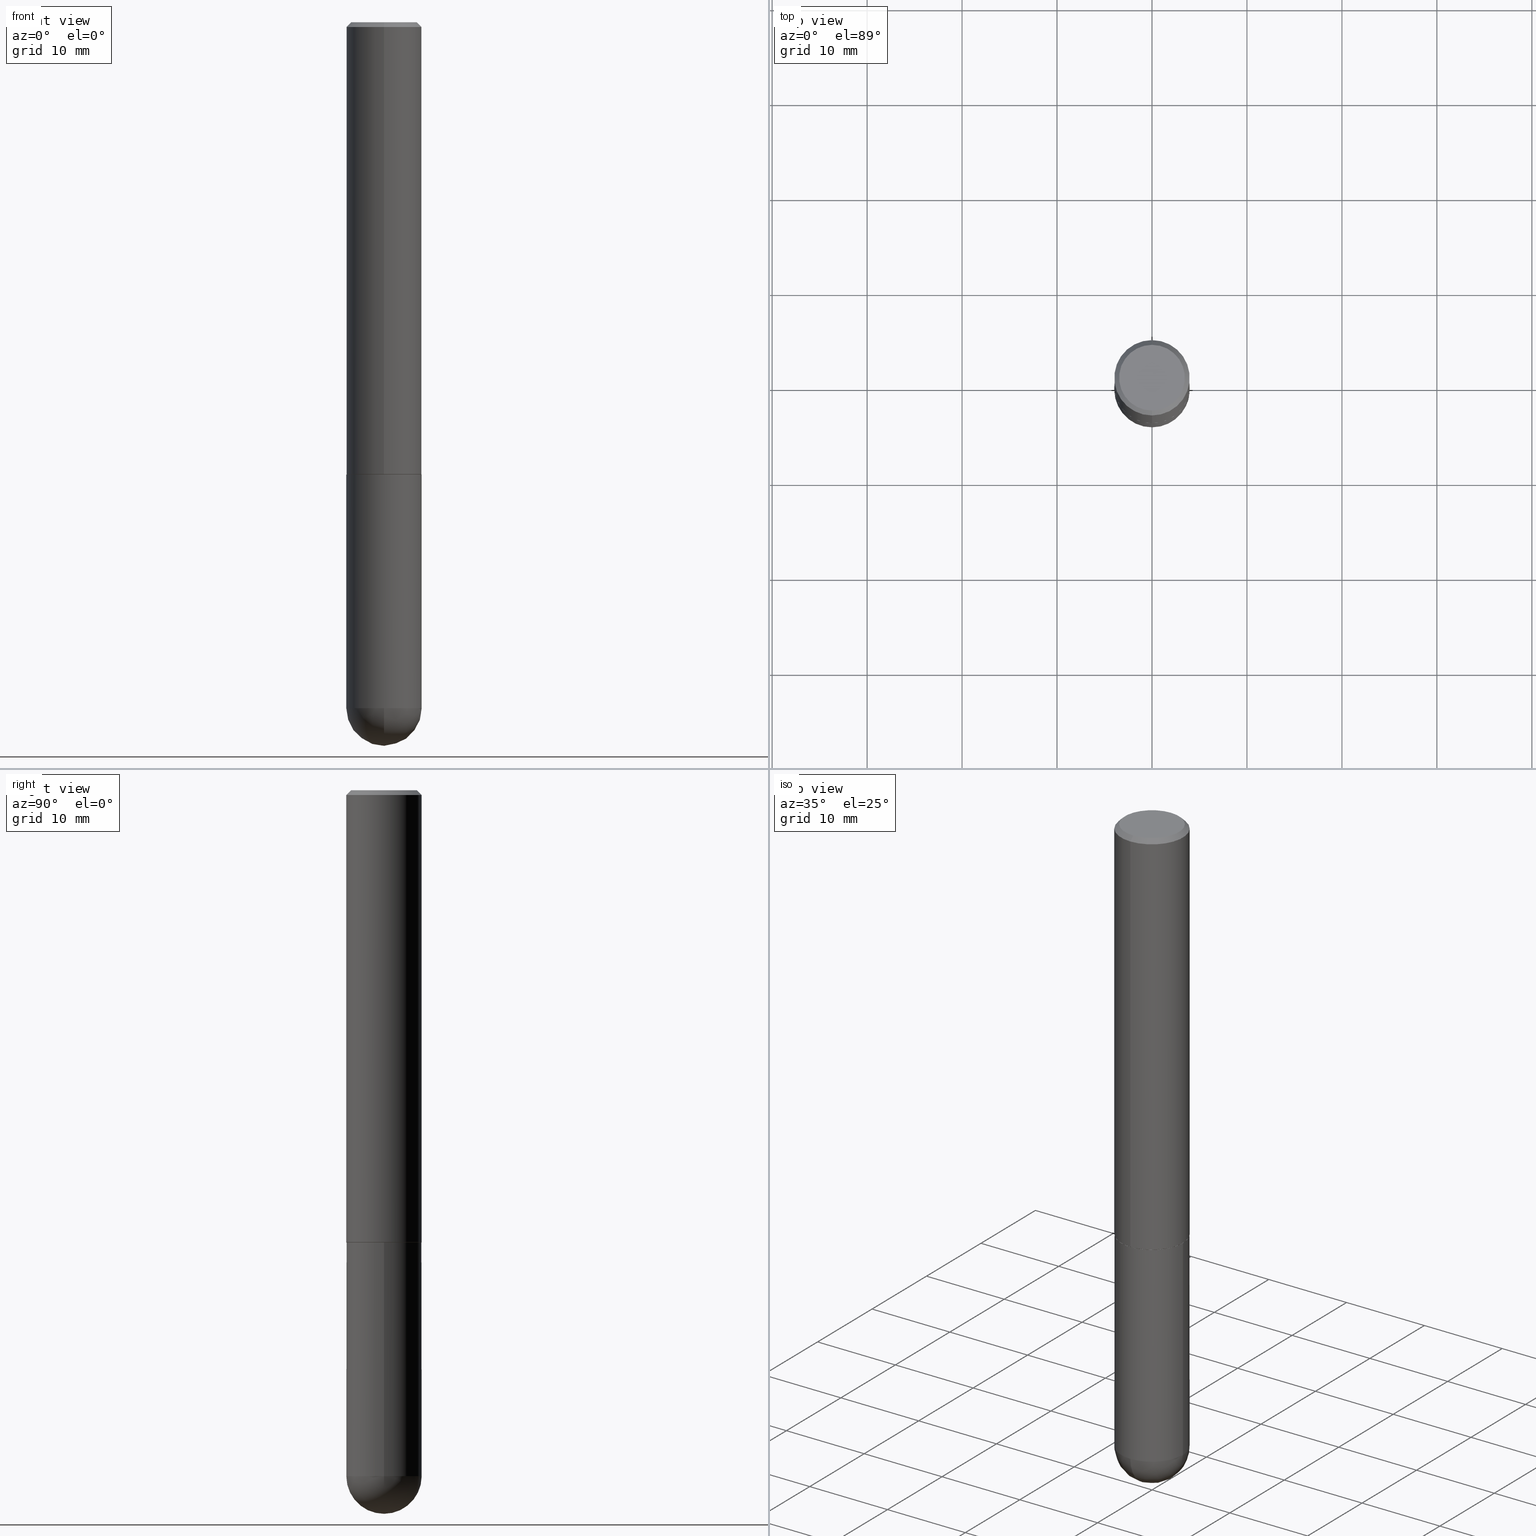
[diagram: canonical four-view strip — front | top / right | iso, engineering-drawing reading convention]
A machine part, canonical four-view strip (front | top / right | iso — engineering-drawing reading convention). The complete STEP part file that produces these views, byte-faithful:
ISO-10303-21;
HEADER;
FILE_DESCRIPTION (( 'STEP AP203' ),
    '1' );
FILE_NAME ('33106.STEP',
    '2024-02-21T17:48:07',
    ( '' ),
    ( '' ),
    'SwSTEP 2.0',
    'SolidWorks 2023',
    '' );
FILE_SCHEMA (( 'CONFIG_CONTROL_DESIGN' ));
ENDSEC;

DATA;
#1 = DIRECTION ( 'NONE',  ( -6.982962677686265133E-15, -1.000000000000000000, 3.491608104167224685E-15 ) ) ;
#2 = ORIENTED_EDGE ( 'NONE', *, *, #310, .F. ) ;
#3 = DIRECTION ( 'NONE',  ( -6.982962677686265133E-15, -1.000000000000000000, 3.496765431890258103E-15 ) ) ;
#4 = ORIENTED_EDGE ( 'NONE', *, *, #401, .F. ) ;
#5 = VERTEX_POINT ( 'NONE', #159 ) ;
#6 = FACE_OUTER_BOUND ( 'NONE', #108, .T. ) ;
#7 = DIRECTION ( 'NONE',  ( -2.445468806185136597E-29, 3.491481338843145583E-15, 1.000000000000000000 ) ) ;
#8 = EDGE_CURVE ( 'NONE', #254, #392, #345, .T. ) ;
#9 = CARTESIAN_POINT ( 'NONE',  ( -0.1562500000000000000, -7.127490759207891394E-15, -2.843750000000000000 ) ) ;
#10 = VERTEX_POINT ( 'NONE', #266 ) ;
#11 = PRODUCT_DEFINITION_FORMATION_WITH_SPECIFIED_SOURCE ( 'ANY', '', #170, .NOT_KNOWN. ) ;
#12 = AXIS2_PLACEMENT_3D ( 'NONE', #213, #285, #409 ) ;
#13 = ORIENTED_EDGE ( 'NONE', *, *, #302, .F. ) ;
#14 = APPLICATION_PROTOCOL_DEFINITION ( 'international standard', 'config_control_design', 1994, #48 ) ;
#15 = EDGE_CURVE ( 'NONE', #228, #74, #99, .T. ) ;
#16 = DIRECTION ( 'NONE',  ( -2.445380286432449473E-29, 3.491608104167224685E-15, 1.000000000000000000 ) ) ;
#17 = CIRCLE ( 'NONE', #202, 0.1562500000000000000 ) ;
#18 = FACE_OUTER_BOUND ( 'NONE', #134, .T. ) ;
#19 = ADVANCED_FACE ( 'NONE', ( #71 ), #323, .F. ) ;
#20 = FACE_OUTER_BOUND ( 'NONE', #36, .T. ) ;
#21 = AXIS2_PLACEMENT_3D ( 'NONE', #408, #111, #244 ) ;
#22 = CARTESIAN_POINT ( 'NONE',  ( -0.1562500000000000000, 1.110223024625156540E-15, -7.685836078523291160E-30 ) ) ;
#23 = CARTESIAN_POINT ( 'NONE',  ( 0.1562500000000000000, -9.328801702221526319E-15, -2.843750000000000000 ) ) ;
#24 = APPROVAL_DATE_TIME ( #366, #88 ) ;
#25 = FACE_OUTER_BOUND ( 'NONE', #161, .T. ) ;
#26 = CIRCLE ( 'NONE', #106, 0.1562500000000002498 ) ;
#27 = DIRECTION ( 'NONE',  ( 2.445380286432449473E-29, -3.491608104167224685E-15, -1.000000000000000000 ) ) ;
#28 = CARTESIAN_POINT ( 'NONE',  ( 4.890760572864907283E-31, -6.983216208334460956E-17, -0.02000000000000003511 ) ) ;
#29 = DIRECTION ( 'NONE',  ( -2.445380286432449473E-29, 3.491608104167224685E-15, 1.000000000000000000 ) ) ;
#30 = ORIENTED_EDGE ( 'NONE', *, *, #232, .F. ) ;
#31 = DATE_TIME_ROLE ( 'classification_date' ) ;
#32 =( NAMED_UNIT ( * ) PLANE_ANGLE_UNIT ( ) SI_UNIT ( $, .RADIAN. ) );
#33 = ORIENTED_EDGE ( 'NONE', *, *, #203, .F. ) ;
#34 = SHAPE_DEFINITION_REPRESENTATION ( #314, #305 ) ;
#35 = DIRECTION ( 'NONE',  ( 1.000000000000000000, 0.000000000000000000, 0.000000000000000000 ) ) ;
#36 = EDGE_LOOP ( 'NONE', ( #100, #187 ) ) ;
#37 = PERSON_AND_ORGANIZATION_ROLE ( 'design_owner' ) ;
#38 = VERTEX_POINT ( 'NONE', #91 ) ;
#39 = EDGE_LOOP ( 'NONE', ( #222, #381, #385, #191, #221 ) ) ;
#40 = AXIS2_PLACEMENT_3D ( 'NONE', #291, #90, #312 ) ;
#41 = ADVANCED_FACE ( 'NONE', ( #372 ), #94, .T. ) ;
#42 = CC_DESIGN_PERSON_AND_ORGANIZATION_ASSIGNMENT ( #210, #348, ( #11 ) ) ;
#43 = CONICAL_SURFACE ( 'NONE', #197, 0.1552499999999999991, 0.7853981633975336552 ) ;
#44 = DESIGN_CONTEXT ( 'detailed design', #48, 'design' ) ;
#45 = AXIS2_PLACEMENT_3D ( 'NONE', #371, #211, #342 ) ;
#46 = CARTESIAN_POINT ( 'NONE',  ( 1.091087918388524927E-15, 0.1562499999999934497, -1.875000000000000666 ) ) ;
#47 = DIRECTION ( 'NONE',  ( -6.982962677686265922E-15, -1.000000000000000000, 3.519288880726909138E-15 ) ) ;
#48 = APPLICATION_CONTEXT ( 'configuration controlled 3d designs of mechanical parts and assemblies' ) ;
#49 = DATE_TIME_ROLE ( 'creation_date' ) ;
#50 = DIRECTION ( 'NONE',  ( -4.937700262164969294E-15, -0.7071067811866054154, 0.7071067811864896191 ) ) ;
#51 = CARTESIAN_POINT ( 'NONE',  ( 0.1562500000000000000, -1.091087918388479174E-15, 7.619026212181150377E-30 ) ) ;
#52 = LOCAL_TIME ( 12, 48, 7.000000000000000000, #59 ) ;
#53 = PLANE ( 'NONE',  #268 ) ;
#54 = CARTESIAN_POINT ( 'NONE',  ( -1.091087918388479568E-15, -0.1562500000000000833, 5.455637662761290912E-16 ) ) ;
#55 = DIRECTION ( 'NONE',  ( 6.982962677686265133E-15, 1.000000000000000000, -3.496765431890258103E-15 ) ) ;
#56 = DIRECTION ( 'NONE',  ( -2.445380286432449473E-29, 3.491608104167224685E-15, 1.000000000000000000 ) ) ;
#57 = DIRECTION ( 'NONE',  ( -2.445380286432449473E-29, 3.491608104167224685E-15, 1.000000000000000000 ) ) ;
#58 = DIRECTION ( 'NONE',  ( 6.982962677686265922E-15, 1.000000000000000000, -3.496765431890248242E-15 ) ) ;
#59 = COORDINATED_UNIVERSAL_TIME_OFFSET ( 5, 0, .BEHIND. ) ;
#60 = CARTESIAN_POINT ( 'NONE',  ( 4.585088037060842691E-29, -6.546765195313547517E-15, -1.875000000000000000 ) ) ;
#61 = FACE_OUTER_BOUND ( 'NONE', #130, .T. ) ;
#62 = AXIS2_PLACEMENT_3D ( 'NONE', #60, #284, #179 ) ;
#63 = DIRECTION ( 'NONE',  ( -2.445468806185136597E-29, 3.491481338843145583E-15, 1.000000000000000000 ) ) ;
#64 = CARTESIAN_POINT ( 'NONE',  ( -3.340625975209204368E-45, 4.769874359725358949E-31, 1.366096714586189504E-16 ) ) ;
#65 = CIRCLE ( 'NONE', #183, 0.1562500000000000000 ) ;
#66 = DIRECTION ( 'NONE',  ( -6.982962677686265922E-15, -1.000000000000000000, 3.491608104167224685E-15 ) ) ;
#67 = ORIENTED_EDGE ( 'NONE', *, *, #141, .F. ) ;
#68 = CC_DESIGN_PERSON_AND_ORGANIZATION_ASSIGNMENT ( #394, #337, ( #205 ) ) ;
#69 = DATE_AND_TIME ( #296, #404 ) ;
#70 = ORIENTED_EDGE ( 'NONE', *, *, #389, .F. ) ;
#71 = FACE_OUTER_BOUND ( 'NONE', #147, .T. ) ;
#72 = PERSON_AND_ORGANIZATION ( #397, #367 ) ;
#73 = ADVANCED_FACE ( 'NONE', ( #122 ), #251, .T. ) ;
#74 = VERTEX_POINT ( 'NONE', #398 ) ;
#75 = MANIFOLD_SOLID_BREP ( 'Body-Move/Copy2[2]', #198 ) ;
#76 = CARTESIAN_POINT ( 'NONE',  ( 1.091087918388478976E-15, 0.1562499999999998612, -0.02000000000000057981 ) ) ;
#77 = EDGE_CURVE ( 'NONE', #74, #257, #171, .T. ) ;
#78 = CC_DESIGN_APPROVAL ( #88, ( #205 ) ) ;
#79 = CARTESIAN_POINT ( 'NONE',  ( 1.110223024625180601E-15, 0.1562499999999936995, -1.874000000000000554 ) ) ;
#80 = CONICAL_SURFACE ( 'NONE', #181, 0.1562499999999999445, 0.7853981633974472798 ) ;
#81 = ORIENTED_EDGE ( 'NONE', *, *, #295, .T. ) ;
#82 = CIRCLE ( 'NONE', #258, 0.1562499999999999445 ) ;
#83 = DIRECTION ( 'NONE',  ( 1.000000000000000000, -6.982962677686265922E-15, 4.883557194083112340E-29 ) ) ;
#84 = ADVANCED_FACE ( 'NONE', ( #18 ), #390, .T. ) ;
#85 = FACE_OUTER_BOUND ( 'NONE', #195, .T. ) ;
#86 = DIRECTION ( 'NONE',  ( 1.000000000000000000, -6.982962677686262766E-15, 0.000000000000000000 ) ) ;
#87 = LOCAL_TIME ( 12, 48, 7.000000000000000000, #127 ) ;
#88 = APPROVAL ( #137, 'UNSPECIFIED' ) ;
#89 = AXIS2_PLACEMENT_3D ( 'NONE', #375, #338, #98 ) ;
#90 = DIRECTION ( 'NONE',  ( -2.445380286432449473E-29, 3.491608104167224685E-15, 1.000000000000000000 ) ) ;
#91 = CARTESIAN_POINT ( 'NONE',  ( 1.091087918388478976E-15, 0.1562499999999998612, -0.02000000000000057981 ) ) ;
#92 = APPROVAL_STATUS ( 'not_yet_approved' ) ;
#93 = DIRECTION ( 'NONE',  ( -2.445468806185136597E-29, 3.491481338843145583E-15, 1.000000000000000000 ) ) ;
#94 = CYLINDRICAL_SURFACE ( 'NONE', #12, 0.1562500000000000000 ) ;
#95 = PLANE ( 'NONE',  #276 ) ;
#96 = CARTESIAN_POINT ( 'NONE',  ( 0.000000000000000000, 0.000000000000000000, 0.000000000000000000 ) ) ;
#97 = ORIENTED_EDGE ( 'NONE', *, *, #389, .T. ) ;
#98 = DIRECTION ( 'NONE',  ( -6.982962677686265922E-15, -1.000000000000000000, 3.519288880726909138E-15 ) ) ;
#99 = CIRCLE ( 'NONE', #246, 0.1552499999999999991 ) ;
#100 = ORIENTED_EDGE ( 'NONE', *, *, #185, .T. ) ;
#101 = ORIENTED_EDGE ( 'NONE', *, *, #401, .T. ) ;
#102 = LINE ( 'NONE', #76, #219 ) ;
#103 = EDGE_CURVE ( 'NONE', #298, #257, #239, .T. ) ;
#104 = DIRECTION ( 'NONE',  ( -6.982962677686265922E-15, -1.000000000000000000, 3.519288880726909138E-15 ) ) ;
#105 = DIRECTION ( 'NONE',  ( -2.445380286432449473E-29, 3.491608104167224685E-15, 1.000000000000000000 ) ) ;
#106 = AXIS2_PLACEMENT_3D ( 'NONE', #116, #57, #315 ) ;
#107 = EDGE_LOOP ( 'NONE', ( #331, #378, #327, #33 ) ) ;
#108 = EDGE_LOOP ( 'NONE', ( #4, #297, #264, #194 ) ) ;
#109 = CARTESIAN_POINT ( 'NONE',  ( 0.000000000000000000, 0.000000000000000000, 0.000000000000000000 ) ) ;
#110 = AXIS2_PLACEMENT_3D ( 'NONE', #405, #253, #148 ) ;
#111 = DIRECTION ( 'NONE',  ( -1.000000000000000000, 6.982962677686265922E-15, -4.883557194083112340E-29 ) ) ;
#112 = FACE_OUTER_BOUND ( 'NONE', #39, .T. ) ;
#113 = VERTEX_POINT ( 'NONE', #188 ) ;
#114 = PERSON_AND_ORGANIZATION ( #397, #367 ) ;
#115 = CONICAL_SURFACE ( 'NONE', #89, 0.1552499999999999991, 0.7853981633975336552 ) ;
#116 = CARTESIAN_POINT ( 'NONE',  ( 4.582642656774410349E-29, -6.543273587209378977E-15, -1.874000000000000110 ) ) ;
#117 = DIRECTION ( 'NONE',  ( 6.982962677686265133E-15, 1.000000000000000000, -3.496765431890258103E-15 ) ) ;
#118 = APPROVAL_ROLE ( '' ) ;
#119 = DIRECTION ( 'NONE',  ( 0.000000000000000000, 0.000000000000000000, 1.000000000000000000 ) ) ;
#120 = CC_DESIGN_DATE_AND_TIME_ASSIGNMENT ( #403, #49, ( #205 ) ) ;
#121 = DIRECTION ( 'NONE',  ( -6.982962677686265133E-15, -1.000000000000000000, 3.491608104167224290E-15 ) ) ;
#122 = FACE_OUTER_BOUND ( 'NONE', #349, .T. ) ;
#123 = SECURITY_CLASSIFICATION_LEVEL ( 'unclassified' ) ;
#124 = ORIENTED_EDGE ( 'NONE', *, *, #8, .F. ) ;
#125 = DIRECTION ( 'NONE',  ( 1.000000000000000000, -6.982962677686262766E-15, 0.000000000000000000 ) ) ;
#126 = DIRECTION ( 'NONE',  ( -2.445380286432449473E-29, 3.491608104167224685E-15, 1.000000000000000000 ) ) ;
#127 = COORDINATED_UNIVERSAL_TIME_OFFSET ( 5, 0, .BEHIND. ) ;
#128 = PRODUCT_RELATED_PRODUCT_CATEGORY ( 'detail', '', ( #170 ) ) ;
#129 = DIRECTION ( 'NONE',  ( 1.000000000000000000, -6.982962677686262766E-15, 0.000000000000000000 ) ) ;
#130 = EDGE_LOOP ( 'NONE', ( #382, #101, #351, #30 ) ) ;
#131 = AXIS2_PLACEMENT_3D ( 'NONE', #329, #341, #236 ) ;
#132 = ORIENTED_EDGE ( 'NONE', *, *, #203, .T. ) ;
#133 = CIRCLE ( 'NONE', #110, 0.1562500000000000000 ) ;
#134 = EDGE_LOOP ( 'NONE', ( #293, #97, #325, #357 ) ) ;
#135 = EDGE_CURVE ( 'NONE', #5, #38, #227, .T. ) ;
#136 = PERSON_AND_ORGANIZATION ( #397, #367 ) ;
#137 = APPROVAL_STATUS ( 'not_yet_approved' ) ;
#138 = APPROVAL_PERSON_ORGANIZATION ( #172, #166, #249 ) ;
#139 = AXIS2_PLACEMENT_3D ( 'NONE', #387, #7, #129 ) ;
#140 = DIRECTION ( 'NONE',  ( -6.982962677686265133E-15, -1.000000000000000000, 3.491608104167224685E-15 ) ) ;
#141 = EDGE_CURVE ( 'NONE', #38, #5, #82, .T. ) ;
#142 = CARTESIAN_POINT ( 'NONE',  ( 0.1562500000000000000, -7.637615428719378669E-15, -1.875000000000000000 ) ) ;
#143 = SECURITY_CLASSIFICATION ( '', '', #123 ) ;
#144 = VECTOR ( 'NONE', #225, 39.37007874015748143 ) ;
#145 = AXIS2_PLACEMENT_3D ( 'NONE', #280, #313, #177 ) ;
#146 = CYLINDRICAL_SURFACE ( 'NONE', #145, 0.1562500000000000000 ) ;
#147 = EDGE_LOOP ( 'NONE', ( #324, #320 ) ) ;
#148 = DIRECTION ( 'NONE',  ( 1.000000000000000000, -6.982962677686269077E-15, 0.000000000000000000 ) ) ;
#149 = FACE_OUTER_BOUND ( 'NONE', #230, .T. ) ;
#150 = CARTESIAN_POINT ( 'NONE',  ( 4.585088037060842691E-29, -6.546765195313547517E-15, -1.875000000000000000 ) ) ;
#151 = COORDINATED_UNIVERSAL_TIME_OFFSET ( 5, 0, .BEHIND. ) ;
#152 = APPROVAL_PERSON_ORGANIZATION ( #248, #241, #118 ) ;
#153 = DIRECTION ( 'NONE',  ( -2.445380286432449473E-29, 3.491608104167224685E-15, 1.000000000000000000 ) ) ;
#154 = DIRECTION ( 'NONE',  ( -2.445468806185136877E-29, 3.491481338843145188E-15, 1.000000000000000000 ) ) ;
#155 = CARTESIAN_POINT ( 'NONE',  ( -1.071952812151800821E-15, -0.1562500000000000000, -0.01999999999999948694 ) ) ;
#156 = CALENDAR_DATE ( 2024, 21, 2 ) ;
#157 = EDGE_CURVE ( 'NONE', #199, #10, #358, .T. ) ;
#158 = DIRECTION ( 'NONE',  ( -2.445380286432449473E-29, 3.491608104167224685E-15, 1.000000000000000000 ) ) ;
#159 = CARTESIAN_POINT ( 'NONE',  ( -1.071952812151800821E-15, -0.1562500000000000000, -0.01999999999999948694 ) ) ;
#160 = ORIENTED_EDGE ( 'NONE', *, *, #77, .T. ) ;
#161 = EDGE_LOOP ( 'NONE', ( #281, #160, #218, #260 ) ) ;
#162 = AXIS2_PLACEMENT_3D ( 'NONE', #96, #29, #288 ) ;
#163 = ORIENTED_EDGE ( 'NONE', *, *, #207, .T. ) ;
#164 = APPROVAL_PERSON_ORGANIZATION ( #136, #88, #235 ) ;
#165 = AXIS2_PLACEMENT_3D ( 'NONE', #374, #16, #140 ) ;
#166 = APPROVAL ( #309, 'UNSPECIFIED' ) ;
#167 = ADVANCED_FACE ( 'NONE', ( #85 ), #95, .F. ) ;
#168 = AXIS2_PLACEMENT_3D ( 'NONE', #220, #63, #125 ) ;
#169 = CONICAL_SURFACE ( 'NONE', #406, 0.1562499999999999445, 0.7853981633974472798 ) ;
#170 = PRODUCT ( '33106', '33106', '', ( #294 ) ) ;
#171 = LINE ( 'NONE', #200, #393 ) ;
#172 = PERSON_AND_ORGANIZATION ( #397, #367 ) ;
#173 = LINE ( 'NONE', #22, #395 ) ;
#174 = FACE_OUTER_BOUND ( 'NONE', #376, .T. ) ;
#175 = APPLICATION_CONTEXT ( 'configuration controlled 3d designs of mechanical parts and assemblies' ) ;
#176 = ADVANCED_FACE ( 'NONE', ( #174 ), #399, .T. ) ;
#177 = DIRECTION ( 'NONE',  ( 1.000000000000000000, -6.982962677686266711E-15, 4.876176775795936353E-29 ) ) ;
#178 = CARTESIAN_POINT ( 'NONE',  ( -1.110223024625089684E-15, -0.1562500000000103806, -2.843749999999999556 ) ) ;
#179 = DIRECTION ( 'NONE',  ( -6.982962677686265922E-15, -1.000000000000000000, 3.519288880726909138E-15 ) ) ;
#180 = DIRECTION ( 'NONE',  ( -2.445468806185136877E-29, 3.491481338843145188E-15, 1.000000000000000000 ) ) ;
#181 = AXIS2_PLACEMENT_3D ( 'NONE', #306, #250, #117 ) ;
#182 = LOCAL_TIME ( 12, 48, 7.000000000000000000, #151 ) ;
#183 = AXIS2_PLACEMENT_3D ( 'NONE', #204, #311, #336 ) ;
#184 =( LENGTH_UNIT ( ) NAMED_UNIT ( * ) SI_UNIT ( $, .METRE. ) );
#185 = EDGE_CURVE ( 'NONE', #346, #299, #133, .T. ) ;
#186 = PERSON_AND_ORGANIZATION ( #397, #367 ) ;
#187 = ORIENTED_EDGE ( 'NONE', *, *, #238, .T. ) ;
#188 = CARTESIAN_POINT ( 'NONE',  ( 1.091087918388548199E-15, 0.1562499999999900357, -2.843750000000000444 ) ) ;
#189 = ORIENTED_EDGE ( 'NONE', *, *, #302, .T. ) ;
#190 = CALENDAR_DATE ( 2024, 21, 2 ) ;
#191 = ORIENTED_EDGE ( 'NONE', *, *, #308, .F. ) ;
#192 = DIRECTION ( 'NONE',  ( -1.000000000000000000, 6.982962677686265922E-15, -4.876176775795935793E-29 ) ) ;
#193 = AXIS2_PLACEMENT_3D ( 'NONE', #215, #119, #35 ) ;
#194 = ORIENTED_EDGE ( 'NONE', *, *, #141, .T. ) ;
#195 = EDGE_LOOP ( 'NONE', ( #402, #262 ) ) ;
#196 = ADVANCED_FACE ( 'NONE', ( #25 ), #115, .T. ) ;
#197 = AXIS2_PLACEMENT_3D ( 'NONE', #391, #259, #104 ) ;
#198 = CLOSED_SHELL ( 'NONE', ( #196, #84, #273, #265, #73, #377, #19, #167 ) ) ;
#199 = VERTEX_POINT ( 'NONE', #208 ) ;
#200 = CARTESIAN_POINT ( 'NONE',  ( 1.103117597267601089E-15, 0.1552499999999934488, -1.875000000000000666 ) ) ;
#201 = CC_DESIGN_DATE_AND_TIME_ASSIGNMENT ( #410, #31, ( #143 ) ) ;
#202 = AXIS2_PLACEMENT_3D ( 'NONE', #212, #93, #86 ) ;
#203 = EDGE_CURVE ( 'NONE', #257, #298, #26, .T. ) ;
#204 = CARTESIAN_POINT ( 'NONE',  ( 6.954301917588981076E-29, -9.928900057335195583E-15, -2.843750000000000000 ) ) ;
#205 = PRODUCT_DEFINITION ( 'UNKNOWN', '', #11, #44 ) ;
#206 = CARTESIAN_POINT ( 'NONE',  ( -1.091087918388434997E-15, -0.1562500000000068001, -1.873999999999999444 ) ) ;
#207 = EDGE_CURVE ( 'NONE', #396, #392, #347, .T. ) ;
#208 = CARTESIAN_POINT ( 'NONE',  ( -1.003347832174085292E-15, -0.1362499999999998157, 6.123412756514026555E-16 ) ) ;
#209 = DIRECTION ( 'NONE',  ( -1.000000000000000000, 6.982962677686265922E-15, -4.883557194083112340E-29 ) ) ;
#210 = PERSON_AND_ORGANIZATION ( #397, #367 ) ;
#211 = DIRECTION ( 'NONE',  ( -1.000000000000000000, 7.105427357601001070E-15, -4.926315508542082329E-29 ) ) ;
#212 = CARTESIAN_POINT ( 'NONE',  ( 6.954301917588981076E-29, -9.928900057335195583E-15, -2.843750000000000000 ) ) ;
#213 = CARTESIAN_POINT ( 'NONE',  ( 0.000000000000000000, 0.000000000000000000, 0.000000000000000000 ) ) ;
#214 = ORIENTED_EDGE ( 'NONE', *, *, #295, .F. ) ;
#215 = CARTESIAN_POINT ( 'NONE',  ( 0.000000000000000000, 0.000000000000000000, 0.000000000000000000 ) ) ;
#216 = DIRECTION ( 'NONE',  ( 2.445380286432449473E-29, -3.491608104167224685E-15, -1.000000000000000000 ) ) ;
#217 = EDGE_CURVE ( 'NONE', #74, #228, #368, .T. ) ;
#218 = ORIENTED_EDGE ( 'NONE', *, *, #103, .F. ) ;
#219 = VECTOR ( 'NONE', #229, 39.37007874015748143 ) ;
#220 = CARTESIAN_POINT ( 'NONE',  ( 6.954301917588981076E-29, -9.928900057335195583E-15, -2.843750000000000000 ) ) ;
#221 = ORIENTED_EDGE ( 'NONE', *, *, #269, .T. ) ;
#222 = ORIENTED_EDGE ( 'NONE', *, *, #412, .T. ) ;
#223 = PERSON_AND_ORGANIZATION_ROLE ( 'creator' ) ;
#224 = ORIENTED_EDGE ( 'NONE', *, *, #308, .T. ) ;
#225 = DIRECTION ( 'NONE',  ( -2.445380286432449473E-29, 3.491608104167224685E-15, 1.000000000000000000 ) ) ;
#226 = CC_DESIGN_SECURITY_CLASSIFICATION ( #143, ( #11 ) ) ;
#227 = CIRCLE ( 'NONE', #386, 0.1562499999999999445 ) ;
#228 = VERTEX_POINT ( 'NONE', #231 ) ;
#229 = DIRECTION ( 'NONE',  ( 4.937700262164542520E-15, 0.7071067811865443531, -0.7071067811865506814 ) ) ;
#230 = EDGE_LOOP ( 'NONE', ( #352, #81, #379, #13 ) ) ;
#231 = CARTESIAN_POINT ( 'NONE',  ( -1.084104955710747011E-15, -0.1552500000000065494, -1.874999999999999556 ) ) ;
#232 = EDGE_CURVE ( 'NONE', #10, #38, #102, .T. ) ;
#233 = CIRCLE ( 'NONE', #168, 0.1562500000000000000 ) ;
#234 = ORIENTED_EDGE ( 'NONE', *, *, #8, .T. ) ;
#235 = APPROVAL_ROLE ( '' ) ;
#236 = DIRECTION ( 'NONE',  ( 1.000000000000000000, -6.982962677686269077E-15, 0.000000000000000000 ) ) ;
#237 = AXIS2_PLACEMENT_3D ( 'NONE', #109, #153, #121 ) ;
#238 = EDGE_CURVE ( 'NONE', #299, #346, #333, .T. ) ;
#239 = CIRCLE ( 'NONE', #40, 0.1562500000000002498 ) ;
#240 = CALENDAR_DATE ( 2024, 21, 2 ) ;
#241 = APPROVAL ( #92, 'UNSPECIFIED' ) ;
#242 = ADVANCED_FACE ( 'NONE', ( #20 ), #53, .F. ) ;
#243 = CALENDAR_DATE ( 2024, 21, 2 ) ;
#244 = DIRECTION ( 'NONE',  ( 6.982962677686265922E-15, 1.000000000000000000, -3.496765431890248242E-15 ) ) ;
#245 = SPHERICAL_SURFACE ( 'NONE', #278, 0.1562500000000003886 ) ;
#246 = AXIS2_PLACEMENT_3D ( 'NONE', #384, #105, #47 ) ;
#247 = CC_DESIGN_PERSON_AND_ORGANIZATION_ASSIGNMENT ( #72, #37, ( #170 ) ) ;
#248 = PERSON_AND_ORGANIZATION ( #397, #367 ) ;
#249 = APPROVAL_ROLE ( '' ) ;
#250 = DIRECTION ( 'NONE',  ( 2.445380286432449473E-29, -3.491608104167224685E-15, -1.000000000000000000 ) ) ;
#251 = CYLINDRICAL_SURFACE ( 'NONE', #162, 0.1562500000000000833 ) ;
#252 = LINE ( 'NONE', #155, #277 ) ;
#253 = DIRECTION ( 'NONE',  ( -2.445468806185136597E-29, 3.491481338843145583E-15, 1.000000000000000000 ) ) ;
#254 = VERTEX_POINT ( 'NONE', #9 ) ;
#255 =( GEOMETRIC_REPRESENTATION_CONTEXT ( 3 ) GLOBAL_UNCERTAINTY_ASSIGNED_CONTEXT ( ( #270 ) ) GLOBAL_UNIT_ASSIGNED_CONTEXT ( ( #383, #32, #353 ) ) REPRESENTATION_CONTEXT ( 'NONE', 'WORKASPACE' ) );
#256 = APPROVAL_DATE_TIME ( #69, #166 ) ;
#257 = VERTEX_POINT ( 'NONE', #79 ) ;
#258 = AXIS2_PLACEMENT_3D ( 'NONE', #287, #158, #373 ) ;
#259 = DIRECTION ( 'NONE',  ( -2.445380286432449473E-29, 3.491608104167224685E-15, 1.000000000000000000 ) ) ;
#260 = ORIENTED_EDGE ( 'NONE', *, *, #335, .F. ) ;
#261 = DIRECTION ( 'NONE',  ( 2.438088387897960049E-29, -3.491481338843145188E-15, -1.000000000000000000 ) ) ;
#262 = ORIENTED_EDGE ( 'NONE', *, *, #157, .T. ) ;
#263 = DIRECTION ( 'NONE',  ( -4.851104656540958753E-15, -0.7071067811865492381, -0.7071067811865457964 ) ) ;
#264 = ORIENTED_EDGE ( 'NONE', *, *, #232, .T. ) ;
#265 = ADVANCED_FACE ( 'NONE', ( #6 ), #80, .T. ) ;
#266 = CARTESIAN_POINT ( 'NONE',  ( 1.021258291611615678E-15, 0.1362499999999998157, -3.391219327341647547E-16 ) ) ;
#267 = ORIENTED_EDGE ( 'NONE', *, *, #412, .F. ) ;
#268 = AXIS2_PLACEMENT_3D ( 'NONE', #46, #261, #192 ) ;
#269 = EDGE_CURVE ( 'NONE', #328, #113, #17, .T. ) ;
#270 = UNCERTAINTY_MEASURE_WITH_UNIT (LENGTH_MEASURE( 1.000000000000000082E-05 ), #383, 'distance_accuracy_value', 'NONE');
#271 = CC_DESIGN_PERSON_AND_ORGANIZATION_ASSIGNMENT ( #114, #223, ( #11 ) ) ;
#272 = CC_DESIGN_APPROVAL ( #166, ( #11 ) ) ;
#273 = ADVANCED_FACE ( 'NONE', ( #61 ), #169, .T. ) ;
#274 = FACE_OUTER_BOUND ( 'NONE', #107, .T. ) ;
#275 = COORDINATED_UNIVERSAL_TIME_OFFSET ( 5, 0, .BEHIND. ) ;
#276 = AXIS2_PLACEMENT_3D ( 'NONE', #282, #216, #364 ) ;
#277 = VECTOR ( 'NONE', #263, 39.37007874015748143 ) ;
#278 = AXIS2_PLACEMENT_3D ( 'NONE', #369, #209, #58 ) ;
#279 = EDGE_CURVE ( 'NONE', #10, #199, #283, .T. ) ;
#280 = CARTESIAN_POINT ( 'NONE',  ( 0.000000000000000000, 0.000000000000000000, 0.000000000000000000 ) ) ;
#281 = ORIENTED_EDGE ( 'NONE', *, *, #15, .T. ) ;
#282 = CARTESIAN_POINT ( 'NONE',  ( 9.514286648347523799E-16, 0.1362499999999998157, -4.074267684634742669E-16 ) ) ;
#283 = CIRCLE ( 'NONE', #165, 0.1362499999999998157 ) ;
#284 = DIRECTION ( 'NONE',  ( -2.445380286432449473E-29, 3.491608104167224685E-15, 1.000000000000000000 ) ) ;
#285 = DIRECTION ( 'NONE',  ( -2.445468806185136597E-29, 3.491481338843145583E-15, 1.000000000000000000 ) ) ;
#286 = COORDINATED_UNIVERSAL_TIME_OFFSET ( 5, 0, .BEHIND. ) ;
#287 = CARTESIAN_POINT ( 'NONE',  ( 4.890760572864907283E-31, -6.983216208334460956E-17, -0.02000000000000003511 ) ) ;
#288 = DIRECTION ( 'NONE',  ( -6.982962677686265133E-15, -1.000000000000000000, 3.491608104167224290E-15 ) ) ;
#289 = DATE_AND_TIME ( #156, #52 ) ;
#290 = LINE ( 'NONE', #321, #144 ) ;
#291 = CARTESIAN_POINT ( 'NONE',  ( 4.582642656774410349E-29, -6.543273587209378977E-15, -1.874000000000000110 ) ) ;
#292 = CC_DESIGN_APPROVAL ( #241, ( #143 ) ) ;
#293 = ORIENTED_EDGE ( 'NONE', *, *, #103, .T. ) ;
#294 = MECHANICAL_CONTEXT ( 'NONE', #175, 'mechanical' ) ;
#295 = EDGE_CURVE ( 'NONE', #396, #113, #318, .T. ) ;
#296 = CALENDAR_DATE ( 2024, 21, 2 ) ;
#297 = ORIENTED_EDGE ( 'NONE', *, *, #279, .F. ) ;
#298 = VERTEX_POINT ( 'NONE', #206 ) ;
#299 = VERTEX_POINT ( 'NONE', #316 ) ;
#300 = CLOSED_SHELL ( 'NONE', ( #326, #176, #332, #242, #41 ) ) ;
#301 = EDGE_LOOP ( 'NONE', ( #2, #234, #189, #224, #356 ) ) ;
#302 = EDGE_CURVE ( 'NONE', #392, #328, #65, .T. ) ;
#303 = VECTOR ( 'NONE', #180, 39.37007874015748143 ) ;
#304 = CC_DESIGN_PERSON_AND_ORGANIZATION_ASSIGNMENT ( #186, #319, ( #143 ) ) ;
#305 = ADVANCED_BREP_SHAPE_REPRESENTATION ( '33106', ( #334, #75, #193 ), #255 ) ;
#306 = CARTESIAN_POINT ( 'NONE',  ( 4.890760572864907283E-31, -6.983216208334460956E-17, -0.02000000000000003511 ) ) ;
#307 = DIRECTION ( 'NONE',  ( 5.024295867788490741E-15, 0.7071067811866103003, 0.7071067811864847341 ) ) ;
#308 = EDGE_CURVE ( 'NONE', #328, #346, #343, .T. ) ;
#309 = APPROVAL_STATUS ( 'not_yet_approved' ) ;
#310 = EDGE_CURVE ( 'NONE', #254, #299, #173, .T. ) ;
#311 = DIRECTION ( 'NONE',  ( -2.445468806185136597E-29, 3.491481338843145583E-15, 1.000000000000000000 ) ) ;
#312 = DIRECTION ( 'NONE',  ( -6.982962677686265922E-15, -1.000000000000000000, 3.496765431890251398E-15 ) ) ;
#313 = DIRECTION ( 'NONE',  ( -2.445468806185136597E-29, 3.491481338843145583E-15, 1.000000000000000000 ) ) ;
#314 = PRODUCT_DEFINITION_SHAPE ( 'NONE', 'NONE',  #205 ) ;
#315 = DIRECTION ( 'NONE',  ( -6.982962677686265922E-15, -1.000000000000000000, 3.496765431890251398E-15 ) ) ;
#316 = CARTESIAN_POINT ( 'NONE',  ( -0.1562500000000000000, -7.127490759207891394E-15, -1.875000000000000000 ) ) ;
#317 = LOCAL_TIME ( 12, 48, 7.000000000000000000, #275 ) ;
#318 = CIRCLE ( 'NONE', #360, 0.1562500000000003886 ) ;
#319 = PERSON_AND_ORGANIZATION_ROLE ( 'classification_officer' ) ;
#320 = ORIENTED_EDGE ( 'NONE', *, *, #217, .F. ) ;
#321 = CARTESIAN_POINT ( 'NONE',  ( 1.110223024625156738E-15, 0.1562500000000000833, -5.455637662761290912E-16 ) ) ;
#322 = DIRECTION ( 'NONE',  ( -2.445380286432449473E-29, 3.491608104167224685E-15, 1.000000000000000000 ) ) ;
#323 = PLANE ( 'NONE',  #355 ) ;
#324 = ORIENTED_EDGE ( 'NONE', *, *, #15, .F. ) ;
#325 = ORIENTED_EDGE ( 'NONE', *, *, #135, .F. ) ;
#326 = ADVANCED_FACE ( 'NONE', ( #112 ), #146, .T. ) ;
#327 = ORIENTED_EDGE ( 'NONE', *, *, #335, .T. ) ;
#328 = VERTEX_POINT ( 'NONE', #23 ) ;
#329 = CARTESIAN_POINT ( 'NONE',  ( 4.585254011597131119E-29, -6.546527510330898707E-15, -1.875000000000000000 ) ) ;
#330 = AXIS2_PLACEMENT_3D ( 'NONE', #64, #126, #1 ) ;
#331 = ORIENTED_EDGE ( 'NONE', *, *, #77, .F. ) ;
#332 = ADVANCED_FACE ( 'NONE', ( #149 ), #245, .T. ) ;
#333 = CIRCLE ( 'NONE', #131, 0.1562500000000000000 ) ;
#334 = MANIFOLD_SOLID_BREP ( 'Body-Move/Copy2[1]', #300 ) ;
#335 = EDGE_CURVE ( 'NONE', #228, #298, #400, .T. ) ;
#336 = DIRECTION ( 'NONE',  ( 1.000000000000000000, -6.982962677686262766E-15, 0.000000000000000000 ) ) ;
#337 = PERSON_AND_ORGANIZATION_ROLE ( 'creator' ) ;
#338 = DIRECTION ( 'NONE',  ( -2.445380286432449473E-29, 3.491608104167224685E-15, 1.000000000000000000 ) ) ;
#339 = CARTESIAN_POINT ( 'NONE',  ( 6.623182139675095950E-29, -1.040308242547524746E-14, -2.843750000000000000 ) ) ;
#340 = APPROVAL_DATE_TIME ( #289, #241 ) ;
#341 = DIRECTION ( 'NONE',  ( -2.445468806185136597E-29, 3.491481338843145583E-15, 1.000000000000000000 ) ) ;
#342 = DIRECTION ( 'NONE',  ( -7.105427357601000281E-15, -1.000000000000000000, 0.000000000000000000 ) ) ;
#343 = LINE ( 'NONE', #51, #303 ) ;
#344 = CARTESIAN_POINT ( 'NONE',  ( 7.011967627275737762E-29, -1.093905883155115073E-14, -3.000000000000000444 ) ) ;
#345 = CIRCLE ( 'NONE', #139, 0.1562500000000000000 ) ;
#346 = VERTEX_POINT ( 'NONE', #142 ) ;
#347 = CIRCLE ( 'NONE', #45, 0.1562500000000003886 ) ;
#348 = PERSON_AND_ORGANIZATION_ROLE ( 'design_supplier' ) ;
#349 = EDGE_LOOP ( 'NONE', ( #70, #132, #361, #67 ) ) ;
#350 = EDGE_CURVE ( 'NONE', #298, #5, #363, .T. ) ;
#351 = ORIENTED_EDGE ( 'NONE', *, *, #135, .T. ) ;
#352 = ORIENTED_EDGE ( 'NONE', *, *, #207, .F. ) ;
#353 =( NAMED_UNIT ( * ) SI_UNIT ( $, .STERADIAN. ) SOLID_ANGLE_UNIT ( ) );
#354 = VECTOR ( 'NONE', #50, 39.37007874015748143 ) ;
#355 = AXIS2_PLACEMENT_3D ( 'NONE', #150, #370, #66 ) ;
#356 = ORIENTED_EDGE ( 'NONE', *, *, #238, .F. ) ;
#357 = ORIENTED_EDGE ( 'NONE', *, *, #350, .F. ) ;
#358 = CIRCLE ( 'NONE', #330, 0.1362499999999998157 ) ;
#359 = VECTOR ( 'NONE', #56, 39.37007874015748143 ) ;
#360 = AXIS2_PLACEMENT_3D ( 'NONE', #339, #83, #365 ) ;
#361 = ORIENTED_EDGE ( 'NONE', *, *, #350, .T. ) ;
#362 = CARTESIAN_POINT ( 'NONE',  ( 4.890760572864907283E-31, -6.983216208334460956E-17, -0.02000000000000003511 ) ) ;
#363 = LINE ( 'NONE', #54, #359 ) ;
#364 = DIRECTION ( 'NONE',  ( 6.982962677686265922E-15, 1.000000000000000000, -3.491608104167224685E-15 ) ) ;
#365 = DIRECTION ( 'NONE',  ( 6.982962677686265922E-15, 1.000000000000000000, 0.000000000000000000 ) ) ;
#366 = DATE_AND_TIME ( #243, #317 ) ;
#367 = ORGANIZATION ( 'UNSPECIFIED', 'UNSPECIFIED', '' ) ;
#368 = CIRCLE ( 'NONE', #62, 0.1552499999999999991 ) ;
#369 = CARTESIAN_POINT ( 'NONE',  ( 6.623182139675095950E-29, -1.040308242547524746E-14, -2.843750000000000000 ) ) ;
#370 = DIRECTION ( 'NONE',  ( -2.445380286432449473E-29, 3.491608104167224685E-15, 1.000000000000000000 ) ) ;
#371 = CARTESIAN_POINT ( 'NONE',  ( 6.623182139675095950E-29, -1.040308242547524746E-14, -2.843750000000000000 ) ) ;
#372 = FACE_OUTER_BOUND ( 'NONE', #301, .T. ) ;
#373 = DIRECTION ( 'NONE',  ( -6.982962677686265133E-15, -1.000000000000000000, 3.496765431890258103E-15 ) ) ;
#374 = CARTESIAN_POINT ( 'NONE',  ( -3.340625975209204368E-45, 4.769874359725358949E-31, 1.366096714586189504E-16 ) ) ;
#375 = CARTESIAN_POINT ( 'NONE',  ( 4.585088037060842691E-29, -6.546765195313547517E-15, -1.875000000000000000 ) ) ;
#376 = EDGE_LOOP ( 'NONE', ( #214, #163, #124, #267 ) ) ;
#377 = ADVANCED_FACE ( 'NONE', ( #274 ), #43, .T. ) ;
#378 = ORIENTED_EDGE ( 'NONE', *, *, #217, .T. ) ;
#379 = ORIENTED_EDGE ( 'NONE', *, *, #269, .F. ) ;
#380 = APPLICATION_PROTOCOL_DEFINITION ( 'international standard', 'config_control_design', 1994, #175 ) ;
#381 = ORIENTED_EDGE ( 'NONE', *, *, #310, .T. ) ;
#382 = ORIENTED_EDGE ( 'NONE', *, *, #157, .F. ) ;
#383 =( CONVERSION_BASED_UNIT ( 'INCH', #411 ) LENGTH_UNIT ( ) NAMED_UNIT ( #388 ) );
#384 = CARTESIAN_POINT ( 'NONE',  ( 4.585088037060842691E-29, -6.546765195313547517E-15, -1.875000000000000000 ) ) ;
#385 = ORIENTED_EDGE ( 'NONE', *, *, #185, .F. ) ;
#386 = AXIS2_PLACEMENT_3D ( 'NONE', #28, #322, #3 ) ;
#387 = CARTESIAN_POINT ( 'NONE',  ( 6.954301917588981076E-29, -9.928900057335195583E-15, -2.843750000000000000 ) ) ;
#388 = DIMENSIONAL_EXPONENTS ( 1.000000000000000000, 0.000000000000000000, 0.000000000000000000, 0.000000000000000000, 0.000000000000000000, 0.000000000000000000, 0.000000000000000000 ) ;
#389 = EDGE_CURVE ( 'NONE', #257, #38, #290, .T. ) ;
#390 = CYLINDRICAL_SURFACE ( 'NONE', #237, 0.1562500000000000833 ) ;
#391 = CARTESIAN_POINT ( 'NONE',  ( 4.585088037060842691E-29, -6.546765195313547517E-15, -1.875000000000000000 ) ) ;
#392 = VERTEX_POINT ( 'NONE', #178 ) ;
#393 = VECTOR ( 'NONE', #307, 39.37007874015748143 ) ;
#394 = PERSON_AND_ORGANIZATION ( #397, #367 ) ;
#395 = VECTOR ( 'NONE', #154, 39.37007874015748143 ) ;
#396 = VERTEX_POINT ( 'NONE', #344 ) ;
#397 = PERSON ( 'UNSPECIFIED', 'UNSPECIFIED', 'UNSPECIFIED', ('UNSPECIFIED'), ('UNSPECIFIED'), ('UNSPECIFIED') ) ;
#398 = CARTESIAN_POINT ( 'NONE',  ( 1.106670310946402382E-15, 0.1552499999999934488, -1.875000000000000666 ) ) ;
#399 = SPHERICAL_SURFACE ( 'NONE', #21, 0.1562500000000003886 ) ;
#400 = LINE ( 'NONE', #407, #354 ) ;
#401 = EDGE_CURVE ( 'NONE', #199, #5, #252, .T. ) ;
#402 = ORIENTED_EDGE ( 'NONE', *, *, #279, .T. ) ;
#403 = DATE_AND_TIME ( #240, #182 ) ;
#404 = LOCAL_TIME ( 12, 48, 7.000000000000000000, #286 ) ;
#405 = CARTESIAN_POINT ( 'NONE',  ( 4.585254011597131119E-29, -6.546527510330898707E-15, -1.875000000000000000 ) ) ;
#406 = AXIS2_PLACEMENT_3D ( 'NONE', #362, #27, #55 ) ;
#407 = CARTESIAN_POINT ( 'NONE',  ( -1.084104955710747011E-15, -0.1552500000000065494, -1.874999999999999556 ) ) ;
#408 = CARTESIAN_POINT ( 'NONE',  ( 6.623182139675095950E-29, -1.040308242547524746E-14, -2.843750000000000000 ) ) ;
#409 = DIRECTION ( 'NONE',  ( 1.000000000000000000, -6.982962677686266711E-15, 4.876176775795936353E-29 ) ) ;
#410 = DATE_AND_TIME ( #190, #87 ) ;
#411 = LENGTH_MEASURE_WITH_UNIT ( LENGTH_MEASURE( 0.02539999999999999897 ), #184 );
#412 = EDGE_CURVE ( 'NONE', #113, #254, #233, .T. ) ;
ENDSEC;
END-ISO-10303-21;
